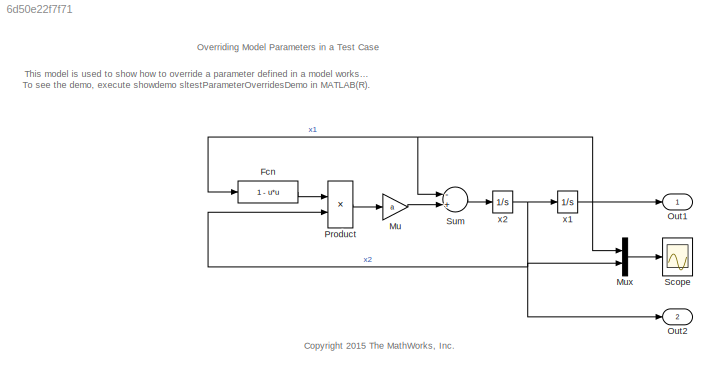
MODEL slx_6d50e22f7f71
KIND model
CONFIG AbsTol = 1e-6
CONFIG FixedStep = auto
CONFIG MaxStep = auto
CONFIG MinStep = auto
CONFIG RelTol = 1e-3
CONFIG SampleTimeConstraint = Unconstrained
CONFIG Solver = ode45
CONFIG SolverMode = SingleTasking
CONFIG SolverName = ode45
CONFIG StartTime = 0.0
CONFIG StopTime = 20
WORKSPACE source: MAT-file member
WORKSPACE a = 1
BLOCK [Fcn] Fcn
  Expr = 1 - u*u
BLOCK [Gain] Mu
  Gain = a
BLOCK [Mux] Mux
  DisplayOption = bar
  Inputs = 2
  Ports = [2, 1]
BLOCK [Outport] Out1
  IconDisplay = Port number
  InitialOutput = 0
BLOCK [Outport] Out2
  IconDisplay = Port number
  InitialOutput = 0
  Port = 2
BLOCK [Product] Product
  Ports = [2, 1]
BLOCK [Scope] Scope
  Ports = [1]
  ScopeSpecificationString = C++SS(StrPVP('Location','[621, 182, 965, 481]'),StrPVP('Open','off'),StrPVP('TickLabels','on'),MxPVP('AxesTitles',24,'struct(''axes1'',''%<SignalLabel>'')'),MxPVP('ScopeGraphics',28,'struct(''FigureColor'',''[0.5 0.5 0.5]'',''AxesColor'',''[0 0 0]'',''AxesTickColor'',''[1 1 1]'',''LineColors'',''[1 1 0;1 0 1;0 1 1;1 0 0;0 1 0;0 0 1]'',''LineStyles'',''-|-|-|-|-|-'',''LineWidths'',''[0.5 0.5 0.5 0....<+289ch>
BLOCK [Sum] Sum
  Inputs = -+
  Ports = [2, 1]
BLOCK [Integrator] x1
  InitialCondition = 2
  Ports = [1, 1]
BLOCK [Integrator] x2
  Ports = [1, 1]
ANNOTATION (root): This model is used to show how to override a parameter defined in a model workspace using test manager. To see the demo, execute showdemo sltestParameterOverridesDemo in MATLAB(R).
ANNOTATION (root): Overriding Model Parameters in a Test Case
ANNOTATION (root): <copyright redacted>
LINE Fcn:1 -> Product:1
LINE Mu:1 -> Sum:2
LINE Mux:1 -> Scope:1
LINE Product:1 -> Mu:1
LINE Sum:1 -> x2:1
NET x1:1 -> Fcn:1, Mux:1, Out1:1, Sum:1
NET x2:1 -> Mux:2, Out2:1, Product:2, x1:1
note: NET lines group one-source signal fan-out (src -> all destinations, sorted); 1:1 wires keep LINE
